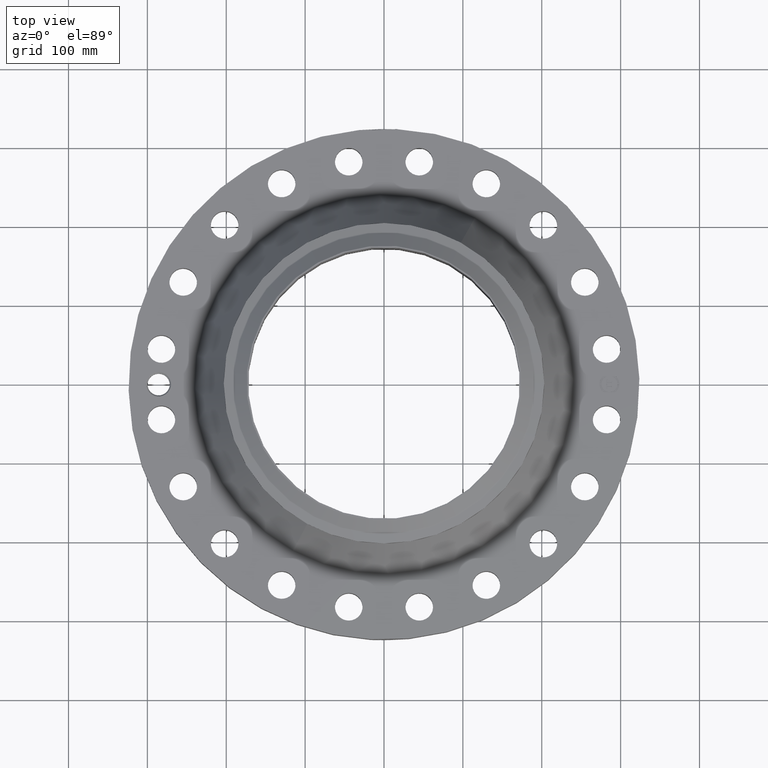
[diagram: clean part render]
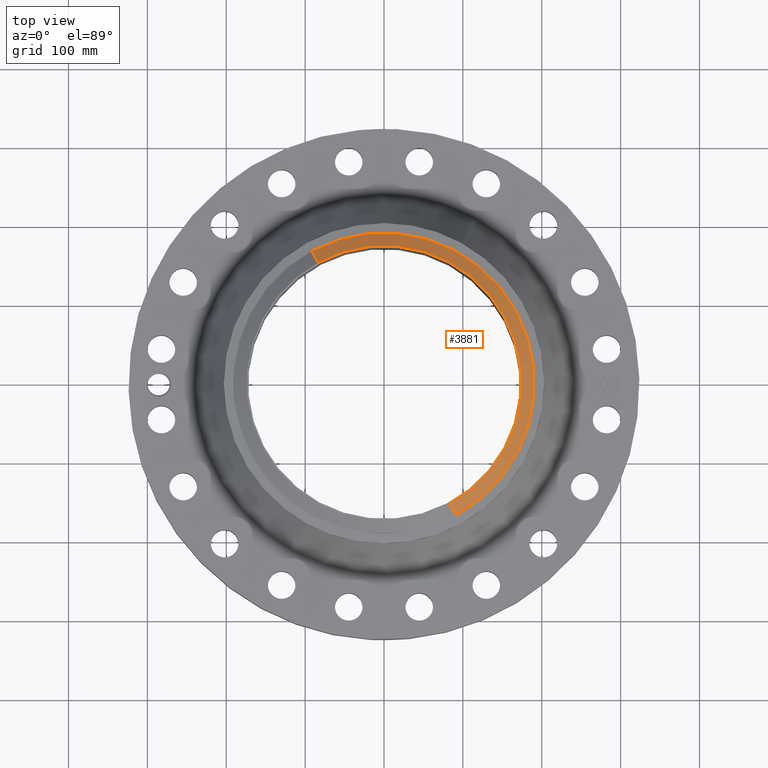
[diagram: same view with one face highlighted and labeled with its STEP entity id]
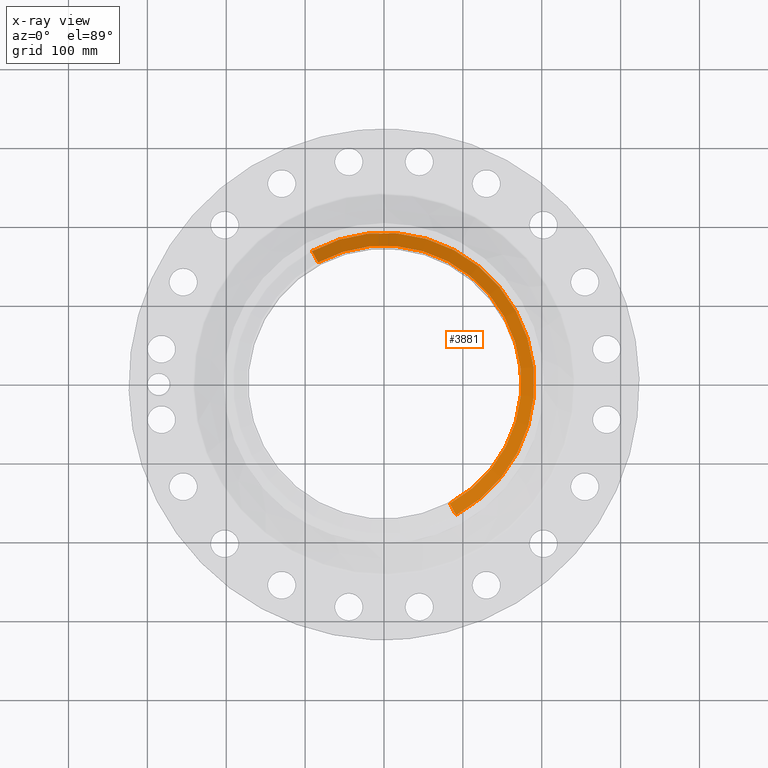
[diagram: x-ray of the same camera — body ghosted, the highlighted face saturated]
A machine part, top view. The second image highlights one B-rep face of the part: STEP entity #3881.
The next image is the same camera in x-ray: the body ghosted, the highlighted face saturated — about 0% of this face is hidden behind the body in this view.
In plain terms, the highlighted conical surface has half-angle 52.5 deg.
Its self-contained STEP definition (entity closure, byte-faithful):
#3034=AXIS2_PLACEMENT_3D('Circle Axis2P3D',#3032,#3033,$) ;
#3842=AXIS2_PLACEMENT_3D('Cone Axis2P3D',#3839,#3840,#3841) ;
#3872=AXIS2_PLACEMENT_3D('Circle Axis2P3D',#3870,#3871,$) ;
#3032=CARTESIAN_POINT('Axis2P3D Location',(0.,0.,5.81000000002)) ;
#3036=CARTESIAN_POINT('Vertex',(3.2887346197,-6.01998834133,5.81000000002)) ;
#3038=CARTESIAN_POINT('Vertex',(-3.2887346197,6.01998834133,5.81000000002)) ;
#3839=CARTESIAN_POINT('Axis2P3D Location',(0.,0.,5.81000000002)) ;
#3844=CARTESIAN_POINT('Line Origine',(-3.44367592225,6.30360649323,5.56201437259)) ;
#3848=CARTESIAN_POINT('Vertex',(-3.5986172248,6.58722464514,5.31402874515)) ;
#3855=CARTESIAN_POINT('Vertex',(3.5986172248,-6.58722464514,5.31402874515)) ;
#3858=CARTESIAN_POINT('Line Origine',(3.44367592225,-6.30360649323,5.56201437259)) ;
#3870=CARTESIAN_POINT('Axis2P3D Location',(0.,0.,5.31402874515)) ;
#3033=DIRECTION('Axis2P3D Direction',(0.,0.,-0.0393700787402)) ;
#3840=DIRECTION('Axis2P3D Direction',(-0.,-0.,-0.0393700787402)) ;
#3841=DIRECTION('Axis2P3D XDirection',(-0.0188750212049,0.0345504945626,0.)) ;
#3845=DIRECTION('Vector Direction',(-0.014974561121,0.02741075027,-0.023966985394)) ;
#3859=DIRECTION('Vector Direction',(0.014974561121,-0.02741075027,-0.023966985394)) ;
#3871=DIRECTION('Axis2P3D Direction',(0.,0.,-0.0393700787402)) ;
#3846=VECTOR('Line Direction',#3845,0.0393700787402) ;
#3860=VECTOR('Line Direction',#3859,0.0393700787402) ;
#3876=ORIENTED_EDGE('',*,*,#3040,.F.) ;
#3877=ORIENTED_EDGE('',*,*,#3862,.T.) ;
#3878=ORIENTED_EDGE('',*,*,#3874,.T.) ;
#3879=ORIENTED_EDGE('',*,*,#3850,.F.) ;
#3881=ADVANCED_FACE('PartBody',(#3880),#3843,.T.) ;
#3035=CIRCLE('generated circle',#3034,6.85974015751) ;
#3873=CIRCLE('generated circle',#3872,7.50610248105) ;
#3843=CONICAL_SURFACE('Cone',#3842,6.85974015751,0.916297857297) ;
#3040=EDGE_CURVE('',#3037,#3039,#3035,.F.) ;
#3850=EDGE_CURVE('',#3039,#3849,#3847,.T.) ;
#3862=EDGE_CURVE('',#3037,#3856,#3861,.T.) ;
#3874=EDGE_CURVE('',#3856,#3849,#3873,.F.) ;
#3875=EDGE_LOOP('',(#3876,#3877,#3878,#3879)) ;
#3880=FACE_OUTER_BOUND('',#3875,.T.) ;
#3847=LINE('Line',#3844,#3846) ;
#3861=LINE('Line',#3858,#3860) ;
#3037=VERTEX_POINT('',#3036) ;
#3039=VERTEX_POINT('',#3038) ;
#3849=VERTEX_POINT('',#3848) ;
#3856=VERTEX_POINT('',#3855) ;